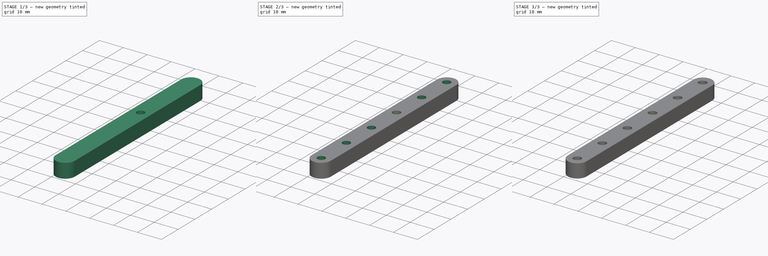
[diagram: build sequence overview — one tinted view per stage of 3, left to right]
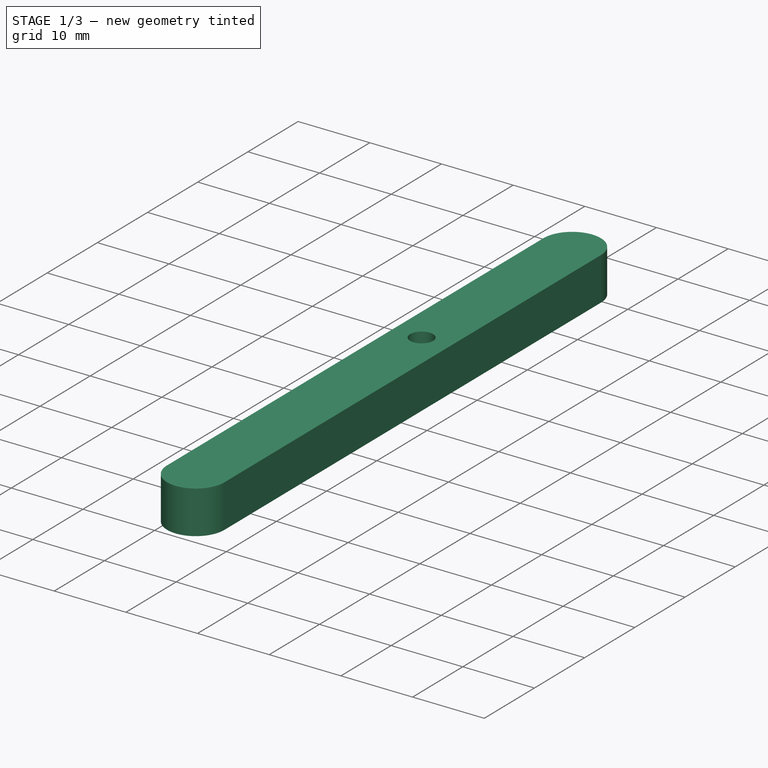
[diagram: stage 1 of 3 — iso view after this stage's code; geometry added in this stage tinted green]
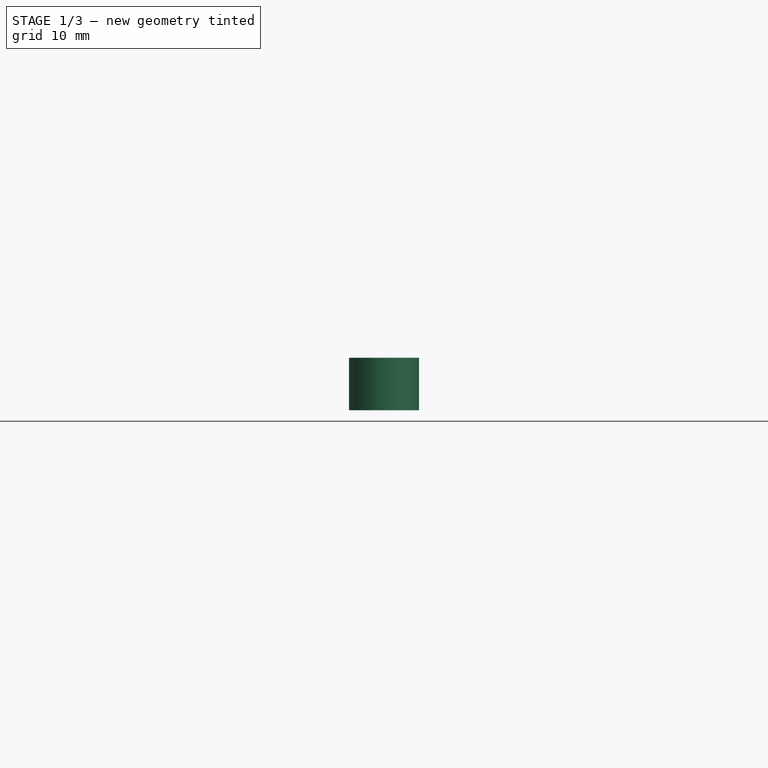
[diagram: stage 1 of 3 — front view after this stage's code; geometry added in this stage tinted green]
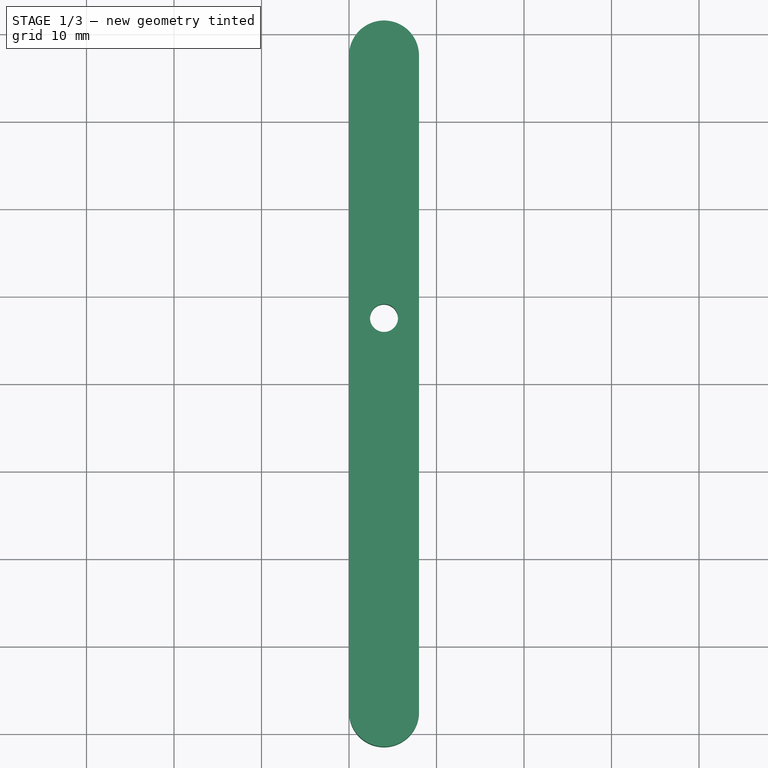
[diagram: stage 1 of 3 — top view after this stage's code; geometry added in this stage tinted green]
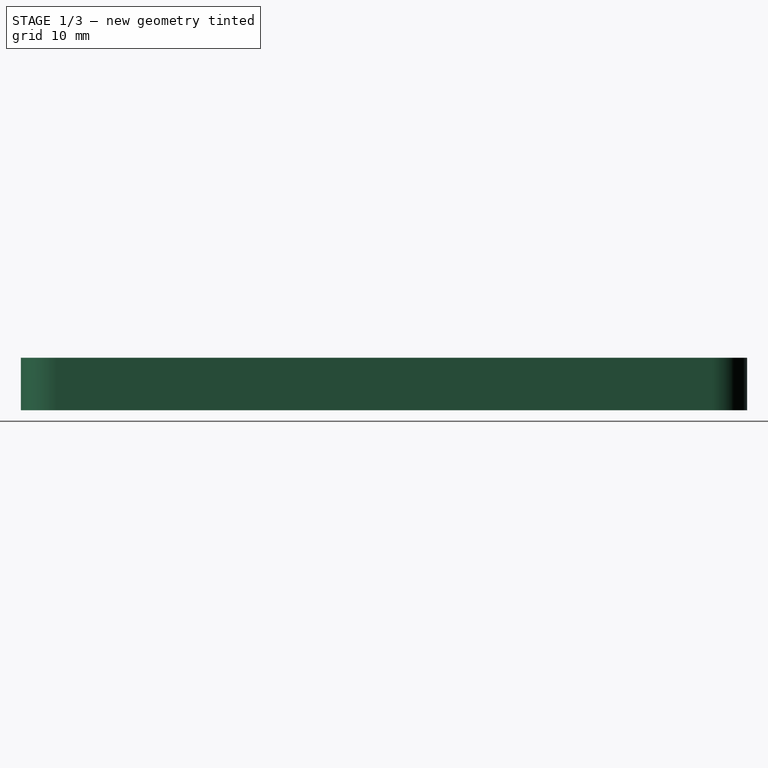
[diagram: stage 1 of 3 — right view after this stage's code; geometry added in this stage tinted green]
FCSTD DOCUMENT  (FreeCAD 0.18.4R)
Label: bar4units_v1
License: All rights reserved
LicenseURL: http://en.wikipedia.org/wiki/All_rights_reserved
objects: Sketcher::SketchObject×3, PartDesign::Pocket×2, PartDesign::LinearPattern×2, PartDesign::Mirrored×2, PartDesign::MultiTransform×2, PartDesign::Pad×1, PartDesign::Fillet×1, PartDesign::Body×1
note: 17 computed .brp shape members not serialized (recipe doc carries the construction recipe); baked Part::Feature solids carry a one-line shape summary decoded from their .brp

FEATURE [Sketcher::SketchObject] Sketch
  MapMode = 5
  Support = -> [XY_Plane]
  sketch-geometry (4):
    g0: LineSegment StartX=0 StartY=37.5 StartZ=0 EndX=0 EndY=-37.5 EndZ=0
    g1: LineSegment StartX=8 StartY=37.5 StartZ=0 EndX=8 EndY=-37.5 EndZ=0
    g2: ArcOfCircle CenterX=4 CenterY=37.5 CenterZ=0 NormalX=0 NormalY=0 NormalZ=1 AngleXU=0 Radius=4 StartAngle=7e-16 EndAngle=3.14159
    g3: ArcOfCircle CenterX=4 CenterY=-37.5 CenterZ=0 NormalX=0 NormalY=0 NormalZ=1 AngleXU=0 Radius=4 StartAngle=3.14159 EndAngle=6.28319
  constraints (13):
    c: Vertical(g0)
    c: Vertical(g1)
    c: DistanceX(g-1,g0) = 0
    c: DistanceY(g-1,g0) = 37.5
    c: DistanceY(g0,g0) = 75
    c: Equal(g1,g0)
    c: DistanceY(g1,g0) = 0
    c: Coincident(g2,g0)
    c: Tangent(g2,g1) = 1.5708
    c: DistanceX(g0,g1) = 8
    c: Coincident(g3,g0)
    c: Coincident(g3,g1)
    c: DistanceY(g3,g1) = 0
FEATURE [PartDesign::Pad] Pad  label="Pad_Bar"
  Length = 6
  Length2 = 100
  Profile = -> Sketch
  Type = 0
FEATURE [Sketcher::SketchObject] Sketch001
  MapMode = 5
  Support = -> [XY_Plane]
  sketch-geometry (1):
    g0: Circle CenterX=4 CenterY=7.5 CenterZ=0 NormalX=0 NormalY=0 NormalZ=1 AngleXU=0 Radius=1.6
  constraints (3):
    c: Radius(g0) = 1.6
    c: DistanceY(g-1,g0) = 7.5
    c: DistanceX(g-1,g0) = 4
FEATURE [PartDesign::Pocket] Pocket  label="Pocket_ScrewBody3mm"
  BaseFeature = -> Pad
  Length = 6
  Length2 = 100
  Profile = -> Sketch001
  Reversed = true
  Type = 0
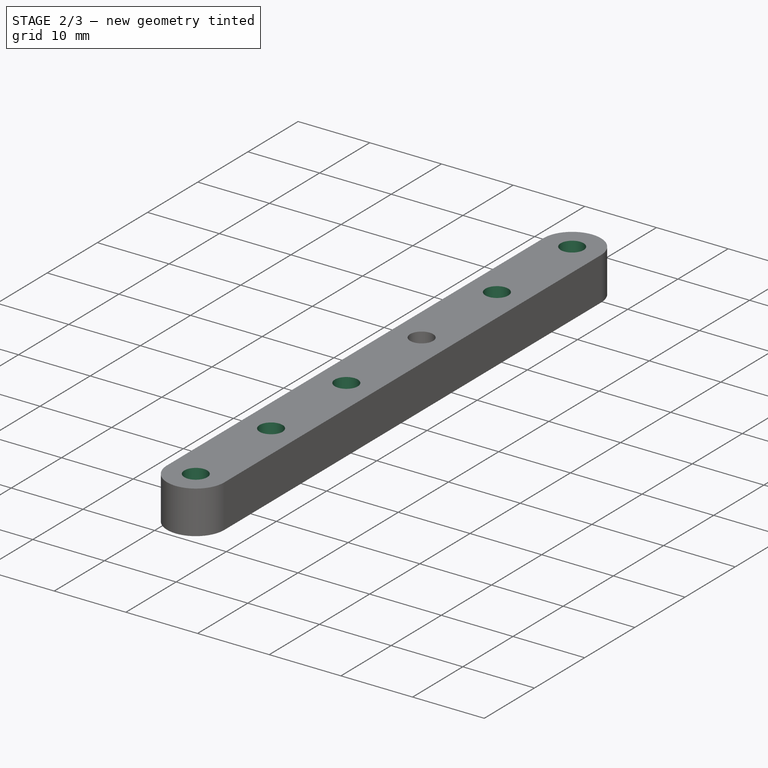
[diagram: stage 2 of 3 — iso view after this stage's code; geometry added in this stage tinted green]
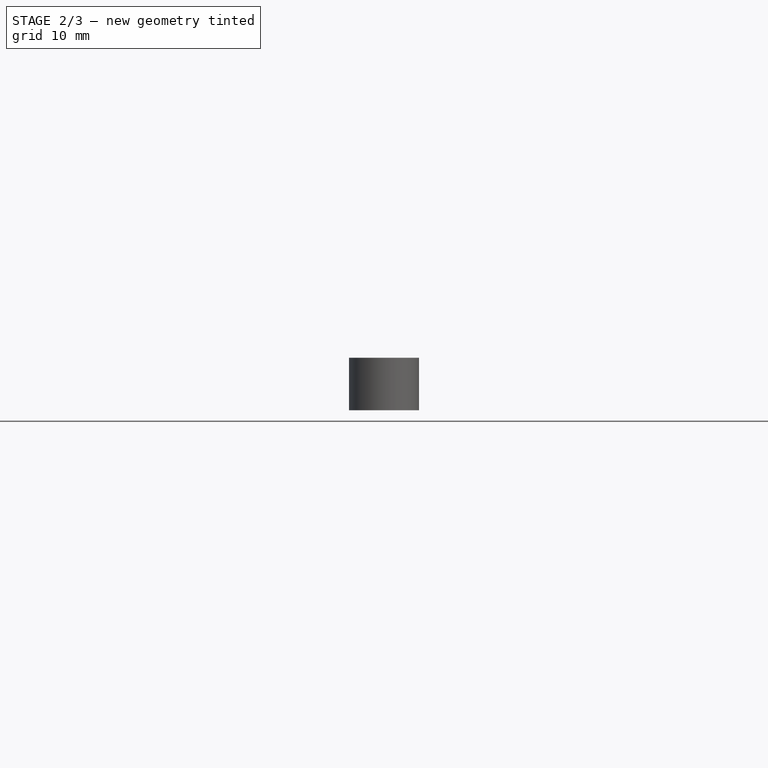
[diagram: stage 2 of 3 — front view after this stage's code; geometry added in this stage tinted green]
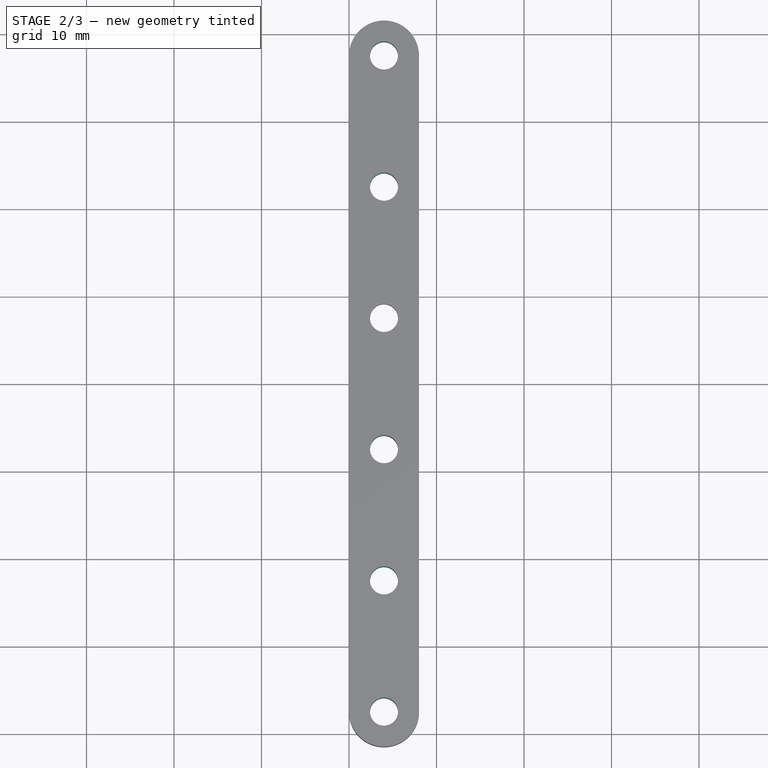
[diagram: stage 2 of 3 — top view after this stage's code; geometry added in this stage tinted green]
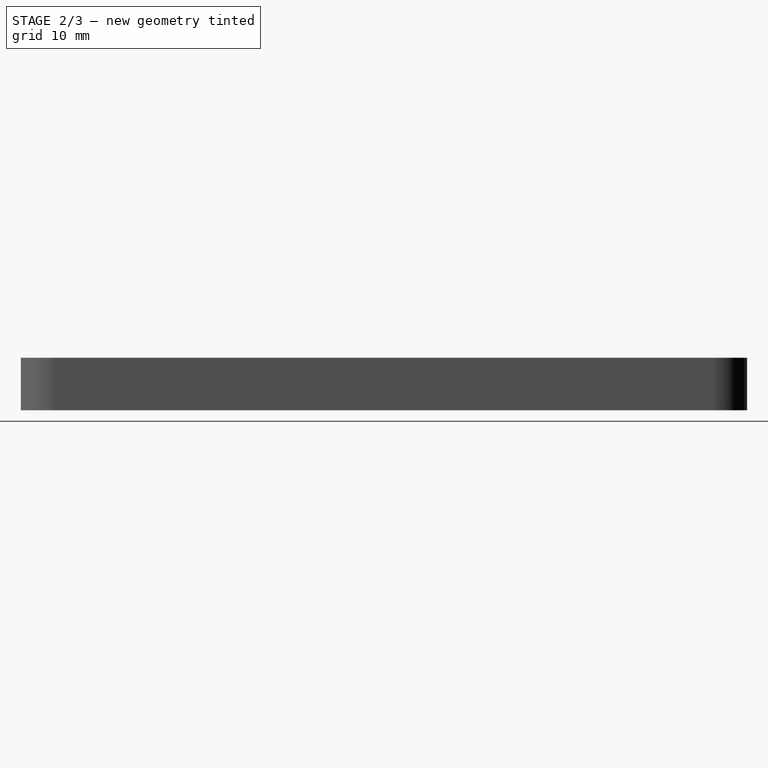
[diagram: stage 2 of 3 — right view after this stage's code; geometry added in this stage tinted green]
FEATURE [Sketcher::SketchObject] Sketch002
  MapMode = 5
  Support = -> [XY_Plane]
  sketch-geometry (1):
    g0: Circle CenterX=4 CenterY=7.5 CenterZ=0 NormalX=0 NormalY=0 NormalZ=1 AngleXU=0 Radius=3.1
  constraints (3):
    c: Diameter(g0) = 6.2
    c: DistanceY(g-1,g0) = 7.5
    c: DistanceX(g-1,g0) = 4
FEATURE [PartDesign::Pocket] Pocket001  label="Pocket_ScrewHead6mm"
  BaseFeature = -> Pocket
  Length = 2
  Length2 = 100
  Profile = -> Sketch002
  Reversed = true
  Type = 0
FEATURE [PartDesign::LinearPattern] LinearPattern
  Direction = -> Y_Axis
  Length = 30
  Occurrences = 3
FEATURE [PartDesign::Mirrored] Mirrored
  MirrorPlane = -> XZ_Plane
FEATURE [PartDesign::MultiTransform] MultiTransform  label="MultiTransform_ScrewBody"
  BaseFeature = -> Pocket001
  Originals = -> [Pocket]
  Transformations = -> [LinearPattern,Mirrored]
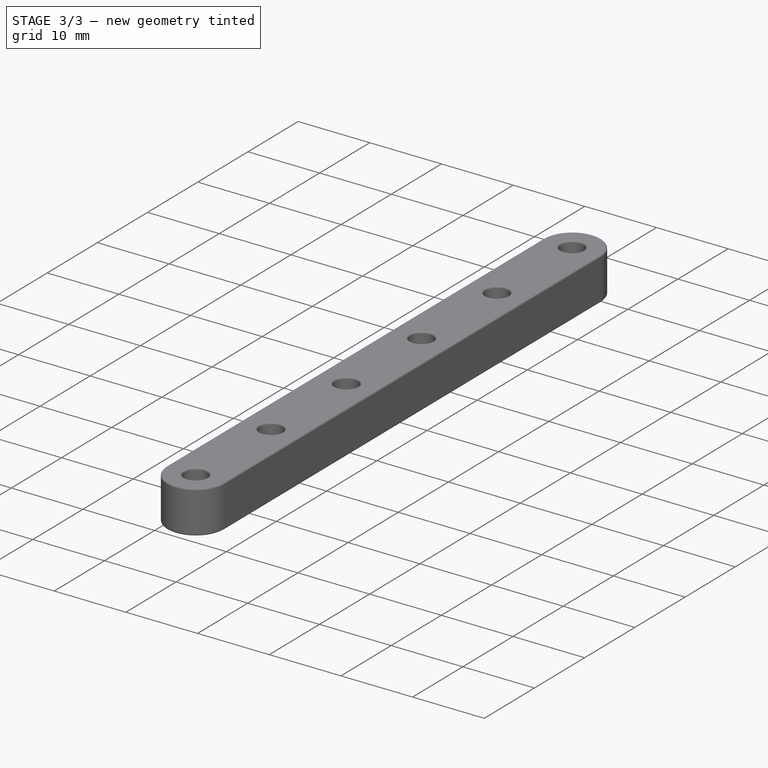
[diagram: stage 3 of 3 — iso view after this stage's code; geometry added in this stage tinted green]
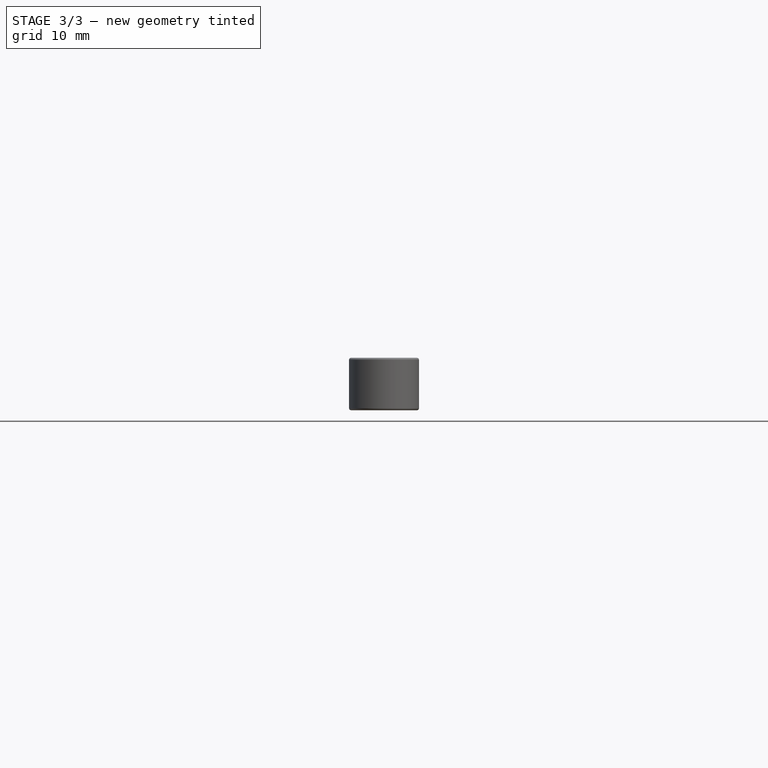
[diagram: stage 3 of 3 — front view after this stage's code; geometry added in this stage tinted green]
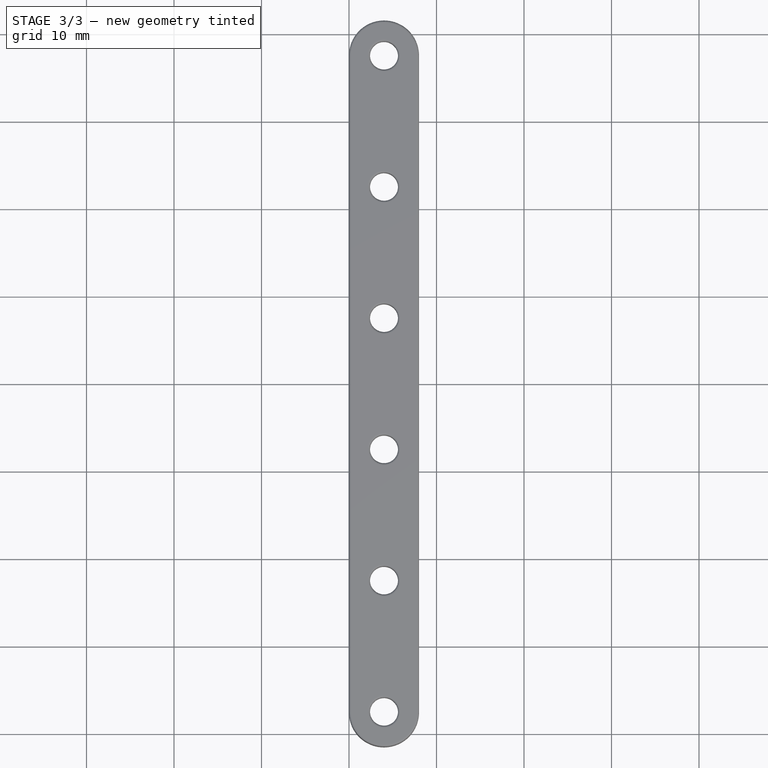
[diagram: stage 3 of 3 — top view after this stage's code; geometry added in this stage tinted green]
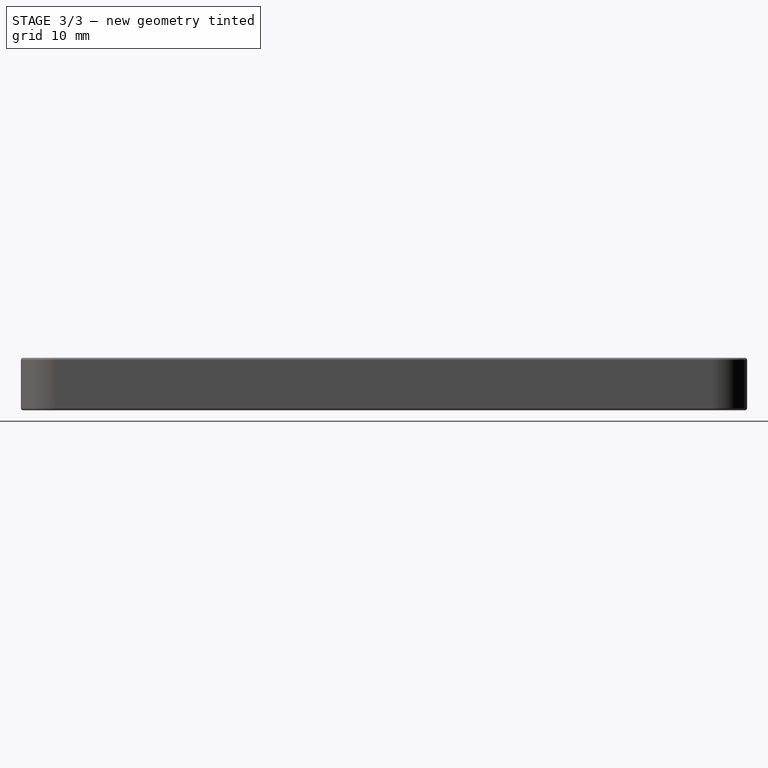
[diagram: stage 3 of 3 — right view after this stage's code; geometry added in this stage tinted green]
FEATURE [PartDesign::LinearPattern] LinearPattern001
  Direction = -> Y_Axis
  Length = 30
  Occurrences = 3
FEATURE [PartDesign::Mirrored] Mirrored001
  MirrorPlane = -> XZ_Plane
FEATURE [PartDesign::MultiTransform] MultiTransform001  label="MultiTransform_ScrewHead"
  BaseFeature = -> MultiTransform
  Originals = -> [Pocket001]
  Transformations = -> [LinearPattern001,Mirrored001]
FEATURE [PartDesign::Fillet] Fillet
  Base = -> MultiTransform001 [Edge11,Edge6,Edge9,Edge3,Edge4,Edge7,Edge18,Edge10,Edge21,Edge22,Edge20,Edge19,Edge23,Edge24,Edge17,Edge45,Edge14,Edge47,Edge13,Edge37,Edge12,Edge39,Edge16,Edge43,Edge15,Edge41]
  BaseFeature = -> MultiTransform001
  Radius = 0.25
FEATURE [PartDesign::Body] Body
  Group = -> [Sketch,Pad,Sketch001,Pocket,Sketch002,Pocket001,MultiTransform,LinearPattern,Mirrored,MultiTransform001,LinearPattern001,Mirrored001,Fillet]
  Origin = -> Origin
  Tip = -> Fillet
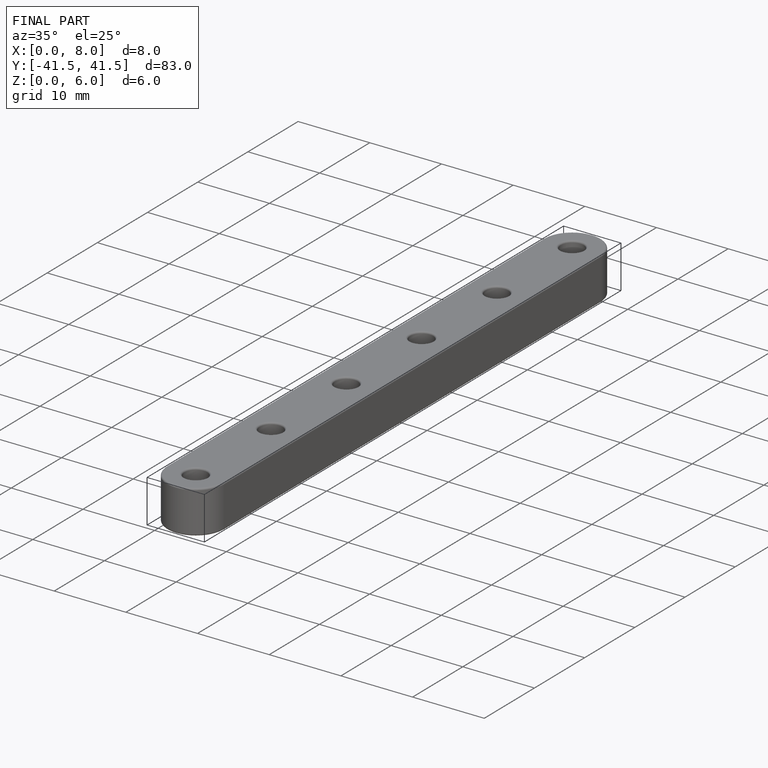
[diagram: finished part — iso view with bounding-box wireframe]
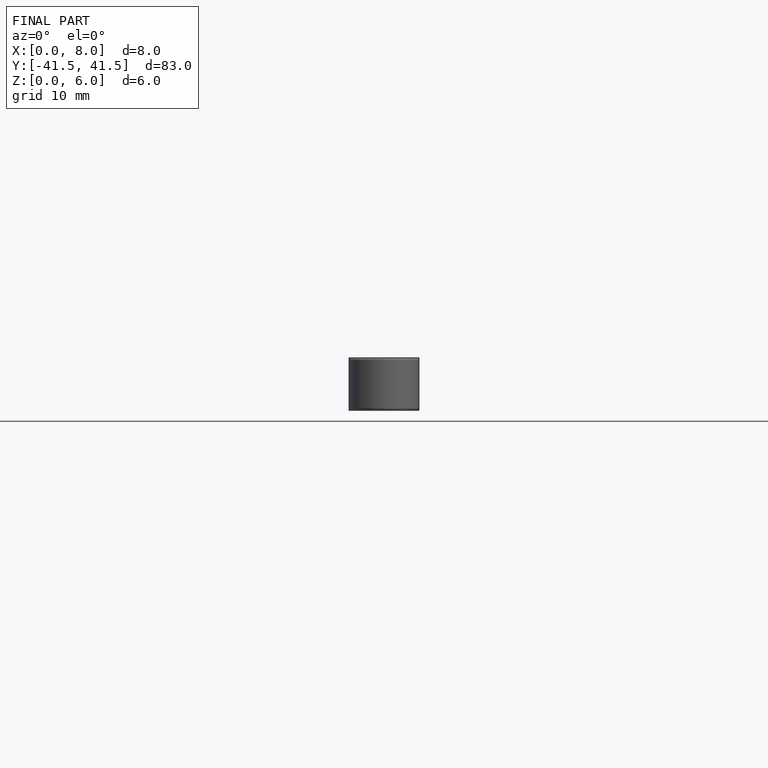
[diagram: finished part — front view with bounding-box wireframe]
